MODEL slx_62a9e46b43ba
KIND model
CONFIG AbsTol = auto
CONFIG EnableMultiTasking = off
CONFIG FixedStep = auto
CONFIG MaxStep = auto
CONFIG MinStep = auto
CONFIG RelTol = 1e-3
CONFIG SampleTimeConstraint = Unconstrained
CONFIG SolverName = FixedStepAuto
CONFIG StartTime = 0.0
CONFIG StopTime = Inf
BLOCK [BusSelector] Bus Selector
  OutputSignals = x,y,theta
  Ports = [1, 3]
BLOCK [MATLABSystem] MATLAB System
  MaskDisplay = disp(['Turtlesim' char(10) 'Visualizer']);\nport_label('input',1,'pose');
  MaskType = TurtlesimVisualizer
  Ports = [1]
  System = TurtlesimVisualizer
BLOCK [Mux] Mux
  DisplayOption = bar
  Inputs = 3
  Ports = [3, 1]
BLOCK [Reference] Publish  REF=ros2lib/Publish  (lib defined in slx_3c1549211f48)
  NameLocation = top
  Ports = [1]
  SourceBlock = ros2lib/Publish
  SourceProductBaseCode = RR
  SourceType = ROS2 Publish
BLOCK [Reference] Subscribe  REF=ros2lib/Subscribe  (lib defined in slx_3c1549211f48)
  Ports = [0, 2]
  SourceBlock = ros2lib/Subscribe
  SourceProductBaseCode = RR
  SourceType = ROS2 Subscribe
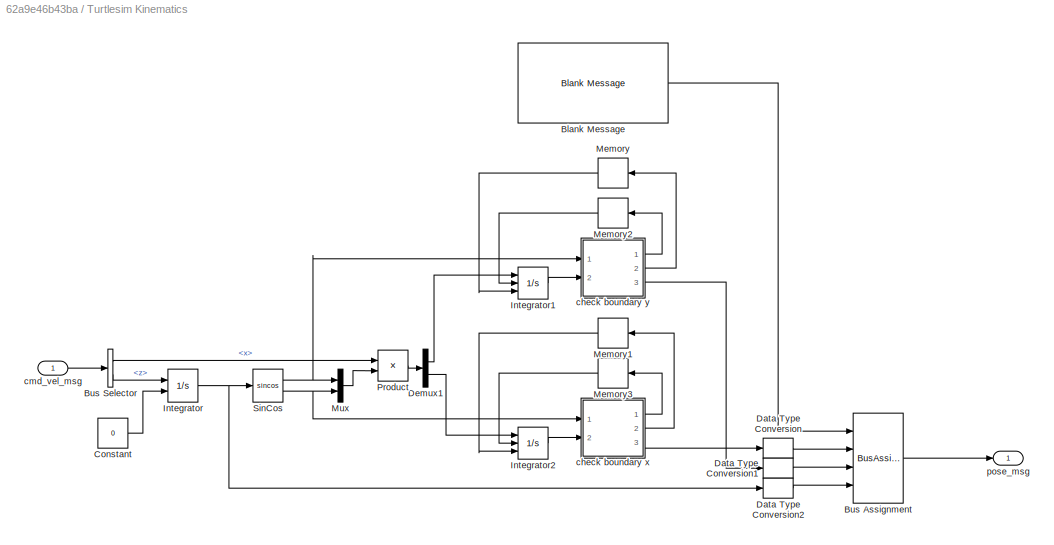
BLOCK [SubSystem] Turtlesim Kinematics
  PortSchema = {"entries":[{"content":{"sides":[{"content":{"connectorIds":["In1","Out1"]},"type":"ConnectorPlacement.EquallySpacedRectSide","uuid":"6cc3d191-8b41-43a3-8d7e-fbb38f5f3909"},{"content":{"connectorIds":[],"side":"RIGHT"},"type":"ConnectorPlacement.EquallySpacedRectSide","uuid":"02a725d1-914e-48c3-8213-963338e78503"},{"content":{"connectorIds":[],"side":"TOP"},"type":"ConnectorPlacement.EquallySpaced...<+241ch>
  Ports = [1, 1]
  RequestExecContextInheritance = off
BLOCK [Reference] Turtlesim Kinematics/Blank Message  REF=ros2lib/Blank Message  (lib defined in slx_3c1549211f48)
  Ports = [0, 1]
  SourceBlock = ros2lib/Blank Message
  SourceProductBaseCode = RR
  SourceType = ROS2 Blank Message
BLOCK [BusAssignment] Turtlesim Kinematics/Bus Assignment
  AssignedSignals = x,y,theta
  Ports = [4, 1]
BLOCK [BusSelector] Turtlesim Kinematics/Bus Selector
  OutputSignals = linear.x,angular.z
  Ports = [1, 2]
BLOCK [Constant] Turtlesim Kinematics/Constant
  Value = 0
BLOCK [DataTypeConversion] Turtlesim Kinematics/Data Type Conversion
  RndMeth = Floor
  SaturateOnIntegerOverflow = off
BLOCK [DataTypeConversion] Turtlesim Kinematics/Data Type Conversion1
  RndMeth = Floor
  SaturateOnIntegerOverflow = off
BLOCK [DataTypeConversion] Turtlesim Kinematics/Data Type Conversion2
  RndMeth = Floor
  SaturateOnIntegerOverflow = off
BLOCK [Demux] Turtlesim Kinematics/Demux1
  Outputs = 2
  Ports = [1, 2]
BLOCK [Integrator] Turtlesim Kinematics/Integrator
  InitialConditionSource = external
  Ports = [2, 1]
BLOCK [Integrator] Turtlesim Kinematics/Integrator1
  ExternalReset = rising
  InitialConditionSource = external
  Ports = [3, 1]
BLOCK [Integrator] Turtlesim Kinematics/Integrator2
  ExternalReset = rising
  InitialConditionSource = external
  Ports = [3, 1]
BLOCK [Memory] Turtlesim Kinematics/Memory
  InitialCondition = 5
  NameLocation = top
BLOCK [Memory] Turtlesim Kinematics/Memory1
  InitialCondition = 5
  NameLocation = top
BLOCK [Memory] Turtlesim Kinematics/Memory2
BLOCK [Memory] Turtlesim Kinematics/Memory3
BLOCK [Mux] Turtlesim Kinematics/Mux
  DisplayOption = bar
  Inputs = 2
  Ports = [2, 1]
BLOCK [Product] Turtlesim Kinematics/Product
  Ports = [2, 1]
BLOCK [Trigonometry] Turtlesim Kinematics/SinCos
  Operator = sincos
  Ports = [1, 2]
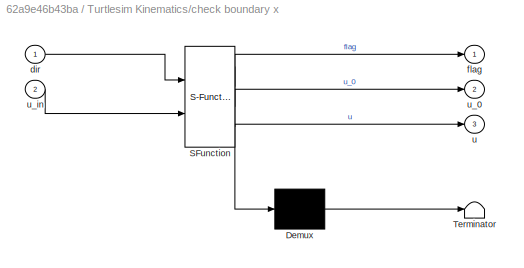
BLOCK [SubSystem] Turtlesim Kinematics/check boundary x
  ErrorFcn = Stateflow.Translate.translate
  PermitHierarchicalResolution = ExplicitOnly
  Ports = [2, 3]
  RequestExecContextInheritance = off
  SFBlockType = Chart
  TreatAsAtomicUnit = on
BLOCK [Demux] Turtlesim Kinematics/check boundary x/ Demux 
  Outputs = 1
  Ports = [1, 1]
BLOCK [S-Function] Turtlesim Kinematics/check boundary x/ SFunction 
  EnableBusSupport = on
  FunctionName = sf_sfun
  PortCounts = [2 4]
  Ports = [2, 4]
  SFcnIsStateOwnerBlock = off
  SFunctionDeploymentMode = off
  Tag = Stateflow S-Function 1
BLOCK [Terminator] Turtlesim Kinematics/check boundary x/ Terminator 
BLOCK [Inport] Turtlesim Kinematics/check boundary x/dir
BLOCK [Outport] Turtlesim Kinematics/check boundary x/flag
BLOCK [Outport] Turtlesim Kinematics/check boundary x/u
  Port = 3
BLOCK [Outport] Turtlesim Kinematics/check boundary x/u_0
  Port = 2
BLOCK [Inport] Turtlesim Kinematics/check boundary x/u_in
  Port = 2
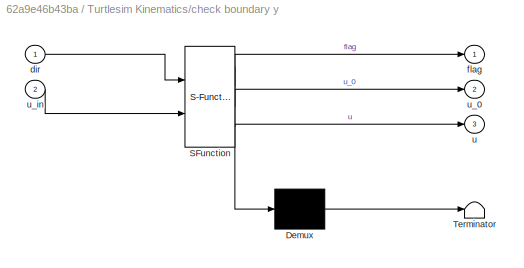
BLOCK [SubSystem] Turtlesim Kinematics/check boundary y
  ErrorFcn = Stateflow.Translate.translate
  PermitHierarchicalResolution = ExplicitOnly
  Ports = [2, 3]
  RequestExecContextInheritance = off
  SFBlockType = Chart
  TreatAsAtomicUnit = on
BLOCK [Demux] Turtlesim Kinematics/check boundary y/ Demux 
  Outputs = 1
  Ports = [1, 1]
BLOCK [S-Function] Turtlesim Kinematics/check boundary y/ SFunction 
  EnableBusSupport = on
  FunctionName = sf_sfun
  PortCounts = [2 4]
  Ports = [2, 4]
  SFcnIsStateOwnerBlock = off
  SFunctionDeploymentMode = off
  Tag = Stateflow S-Function 2
BLOCK [Terminator] Turtlesim Kinematics/check boundary y/ Terminator 
BLOCK [Inport] Turtlesim Kinematics/check boundary y/dir
BLOCK [Outport] Turtlesim Kinematics/check boundary y/flag
BLOCK [Outport] Turtlesim Kinematics/check boundary y/u
  Port = 3
BLOCK [Outport] Turtlesim Kinematics/check boundary y/u_0
  Port = 2
BLOCK [Inport] Turtlesim Kinematics/check boundary y/u_in
  Port = 2
BLOCK [Inport] Turtlesim Kinematics/cmd_vel_msg
  SampleTime = 0.01
BLOCK [Outport] Turtlesim Kinematics/pose_msg
  SampleTime = 0.01
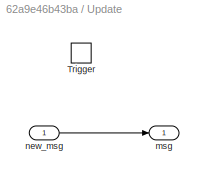
BLOCK [SubSystem] Update
  Ports = [1, 1, 0, 1]
  RequestExecContextInheritance = off
BLOCK [TriggerPort] Update/Trigger
  PortDimensions = 1
  Ports = []
  StatesWhenEnabling = held
  VariantControl = (inherit)
BLOCK [Outport] Update/msg
BLOCK [Inport] Update/new_msg
ANNOTATION (root): Version : 0.0.1 Description: This model consists of turtlesim's kinematics and its visulization. Maintainer: Pi Thanacha Choopojcharoen Email Address: <email> License : GPLv2
LINE Bus Selector:1 -> Mux:1
LINE Bus Selector:2 -> Mux:2
LINE Bus Selector:3 -> Mux:3
LINE Mux:1 -> MATLAB System:1
LINE Subscribe:1 -> Update:trigger
LINE Subscribe:2 -> Update:1
LINE Turtlesim Kinematics/Blank Message:1 -> Turtlesim Kinematics/Bus Assignment:1
LINE Turtlesim Kinematics/Bus Assignment:1 -> Turtlesim Kinematics/pose_msg:1
LINE Turtlesim Kinematics/Bus Selector:1 -> Turtlesim Kinematics/Product:1
LINE Turtlesim Kinematics/Bus Selector:2 -> Turtlesim Kinematics/Integrator:1
LINE Turtlesim Kinematics/Constant:1 -> Turtlesim Kinematics/Integrator:2
LINE Turtlesim Kinematics/Data Type Conversion1:1 -> Turtlesim Kinematics/Bus Assignment:3
LINE Turtlesim Kinematics/Data Type Conversion2:1 -> Turtlesim Kinematics/Bus Assignment:4
LINE Turtlesim Kinematics/Data Type Conversion:1 -> Turtlesim Kinematics/Bus Assignment:2
LINE Turtlesim Kinematics/Demux1:1 -> Turtlesim Kinematics/Integrator1:1
LINE Turtlesim Kinematics/Demux1:2 -> Turtlesim Kinematics/Integrator2:1
LINE Turtlesim Kinematics/Integrator1:1 -> Turtlesim Kinematics/check boundary y:2
LINE Turtlesim Kinematics/Integrator2:1 -> Turtlesim Kinematics/check boundary x:2
NET Turtlesim Kinematics/Integrator:1 -> Turtlesim Kinematics/Data Type Conversion2:1, Turtlesim Kinematics/SinCos:1
LINE Turtlesim Kinematics/Memory1:1 -> Turtlesim Kinematics/Integrator2:3
LINE Turtlesim Kinematics/Memory2:1 -> Turtlesim Kinematics/Integrator1:2
LINE Turtlesim Kinematics/Memory3:1 -> Turtlesim Kinematics/Integrator2:2
LINE Turtlesim Kinematics/Memory:1 -> Turtlesim Kinematics/Integrator1:3
LINE Turtlesim Kinematics/Mux:1 -> Turtlesim Kinematics/Product:2
LINE Turtlesim Kinematics/Product:1 -> Turtlesim Kinematics/Demux1:1
NET Turtlesim Kinematics/SinCos:1 -> Turtlesim Kinematics/Mux:1, Turtlesim Kinematics/check boundary y:1
NET Turtlesim Kinematics/SinCos:2 -> Turtlesim Kinematics/Mux:2, Turtlesim Kinematics/check boundary x:1
LINE Turtlesim Kinematics/check boundary x:1 -> Turtlesim Kinematics/Memory3:1
LINE Turtlesim Kinematics/check boundary x:2 -> Turtlesim Kinematics/Memory1:1
LINE Turtlesim Kinematics/check boundary x:3 -> Turtlesim Kinematics/Data Type Conversion:1
LINE Turtlesim Kinematics/check boundary y:1 -> Turtlesim Kinematics/Memory2:1
LINE Turtlesim Kinematics/check boundary y:2 -> Turtlesim Kinematics/Memory:1
LINE Turtlesim Kinematics/check boundary y:3 -> Turtlesim Kinematics/Data Type Conversion1:1
LINE Turtlesim Kinematics/cmd_vel_msg:1 -> Turtlesim Kinematics/Bus Selector:1
NET Turtlesim Kinematics:1 -> Bus Selector:1, Publish:1
LINE Update/new_msg:1 -> Update/msg:1
LINE Update:1 -> Turtlesim Kinematics:1
note: NET lines group one-source signal fan-out (src -> all destinations, sorted); 1:1 wires keep LINE
CHART Turtlesim Kinematics/check boundary x states=3 transitions=5
  STATE_LABEL 'OutFieldLess'
  STATE_LABEL 'InField\ndu:\nu = u_in;'
  STATE_LABEL 'OutFieldGreater'
CHART Turtlesim Kinematics/check boundary y states=3 transitions=5
  STATE_LABEL 'OutFieldLess'
  STATE_LABEL 'InField\ndu:\nu = u_in;'
  STATE_LABEL 'OutFieldGreater'
CHART  states=0 transitions=0
CHART  states=0 transitions=0
